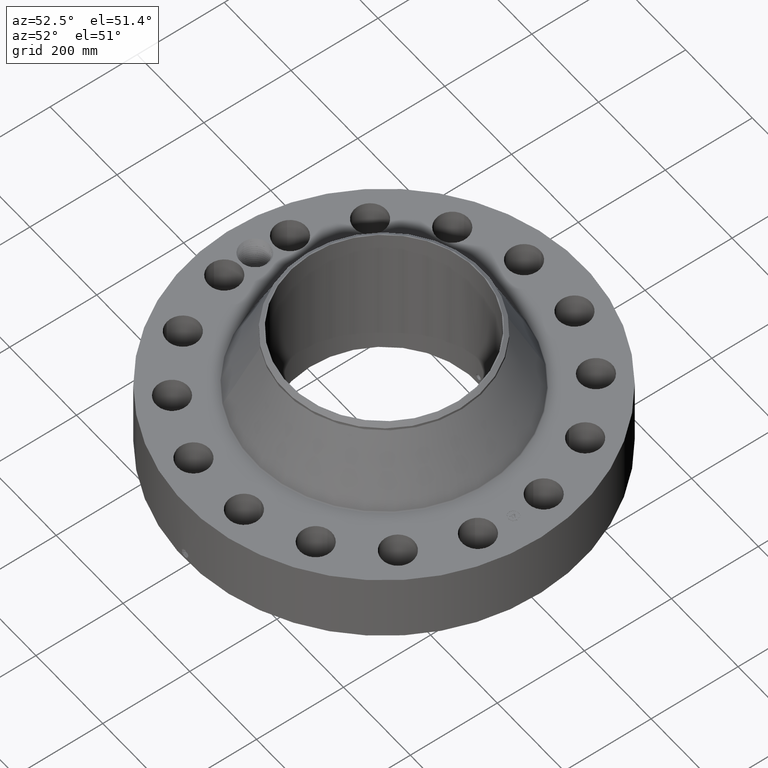
[diagram: clean part render]
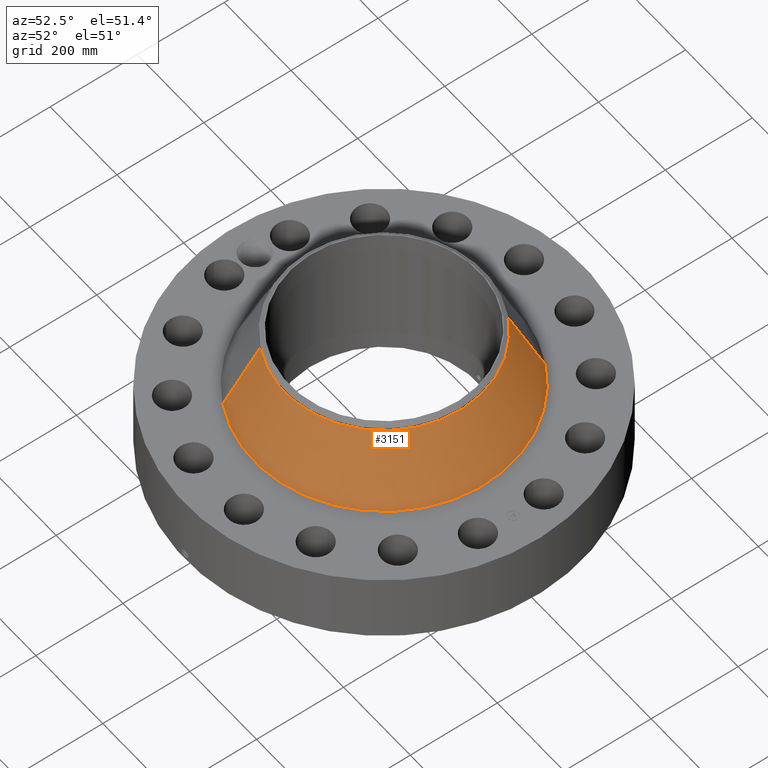
[diagram: same view with one face highlighted and labeled with its STEP entity id]
A machine part, auxiliary view. The second image highlights one B-rep face of the part: STEP entity #3151.
In plain terms, the highlighted conical surface has half-angle 24.667 deg.
Its self-contained STEP definition (entity closure, byte-faithful):
#2365=AXIS2_PLACEMENT_3D('Circle Axis2P3D',#2363,#2364,$) ;
#3124=AXIS2_PLACEMENT_3D('Cone Axis2P3D',#3121,#3122,#3123) ;
#3135=AXIS2_PLACEMENT_3D('Circle Axis2P3D',#3133,#3134,$) ;
#2360=CARTESIAN_POINT('Vertex',(5.61785570567,10.2834158916,6.69991943291)) ;
#2363=CARTESIAN_POINT('Axis2P3D Location',(0.,0.,6.69991943291)) ;
#2367=CARTESIAN_POINT('Vertex',(-5.61785570567,-10.2834158916,6.69991943291)) ;
#3121=CARTESIAN_POINT('Axis2P3D Location',(0.,0.,12.6181097547)) ;
#3126=CARTESIAN_POINT('Line Origine',(4.96634277656,9.09082947431,9.65901459383)) ;
#3130=CARTESIAN_POINT('Vertex',(4.31482984746,7.89824305704,12.6181097547)) ;
#3133=CARTESIAN_POINT('Axis2P3D Location',(0.,0.,12.6181097547)) ;
#3137=CARTESIAN_POINT('Vertex',(-4.31482984746,-7.89824305704,12.6181097547)) ;
#3140=CARTESIAN_POINT('Line Origine',(-4.96634277656,-9.09082947431,9.65901459383)) ;
#2364=DIRECTION('Axis2P3D Direction',(0.,0.,-0.0393700787402)) ;
#3122=DIRECTION('Axis2P3D Direction',(0.,0.,-0.0393700787402)) ;
#3123=DIRECTION('Axis2P3D XDirection',(-0.0188750212049,-0.0345504945626,0.)) ;
#3127=DIRECTION('Vector Direction',(0.00787726471853,0.0144192363479,-0.0357776106483)) ;
#3134=DIRECTION('Axis2P3D Direction',(0.,0.,-0.0393700787402)) ;
#3141=DIRECTION('Vector Direction',(-0.00787726471853,-0.0144192363479,-0.0357776106483)) ;
#3128=VECTOR('Line Direction',#3127,0.0393700787402) ;
#3142=VECTOR('Line Direction',#3141,0.0393700787402) ;
#3146=ORIENTED_EDGE('',*,*,#2369,.F.) ;
#3147=ORIENTED_EDGE('',*,*,#3132,.T.) ;
#3148=ORIENTED_EDGE('',*,*,#3139,.T.) ;
#3149=ORIENTED_EDGE('',*,*,#3144,.F.) ;
#3151=ADVANCED_FACE('PartBody',(#3150),#3125,.T.) ;
#2366=CIRCLE('generated circle',#2365,11.7178899606) ;
#3136=CIRCLE('generated circle',#3135,9.00000000004) ;
#3125=CONICAL_SURFACE('Cone',#3124,9.00000000004,0.430514113941) ;
#2369=EDGE_CURVE('',#2361,#2368,#2366,.T.) ;
#3132=EDGE_CURVE('',#2361,#3131,#3129,.F.) ;
#3139=EDGE_CURVE('',#3131,#3138,#3136,.T.) ;
#3144=EDGE_CURVE('',#2368,#3138,#3143,.F.) ;
#3145=EDGE_LOOP('',(#3146,#3147,#3148,#3149)) ;
#3150=FACE_OUTER_BOUND('',#3145,.T.) ;
#3129=LINE('Line',#3126,#3128) ;
#3143=LINE('Line',#3140,#3142) ;
#2361=VERTEX_POINT('',#2360) ;
#2368=VERTEX_POINT('',#2367) ;
#3131=VERTEX_POINT('',#3130) ;
#3138=VERTEX_POINT('',#3137) ;